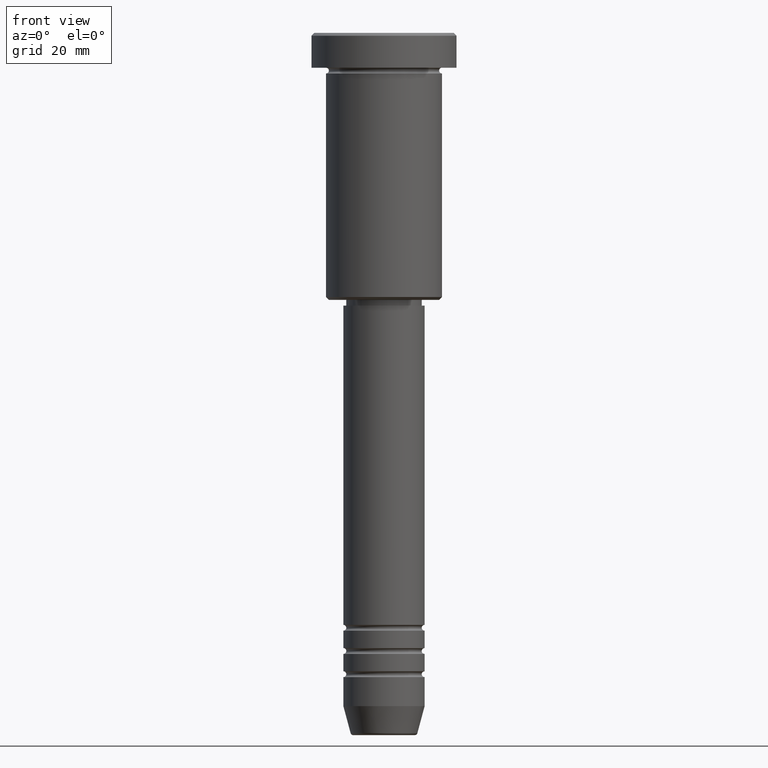
[diagram: clean part render]
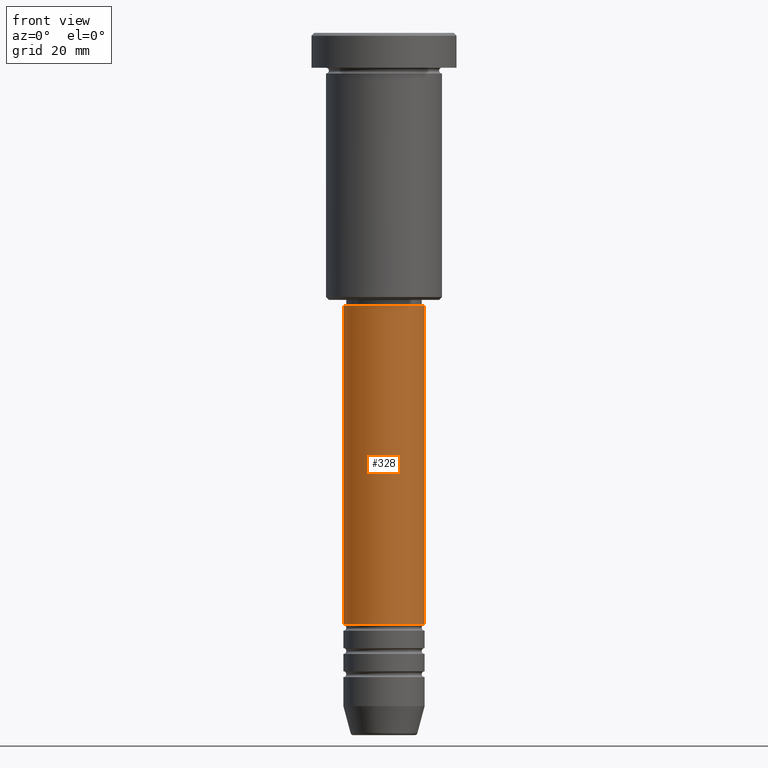
[diagram: same view with one face highlighted and labeled with its STEP entity id]
A machine part, front view. The second image highlights one B-rep face of the part: STEP entity #328.
In plain terms, the highlighted cylindrical surface (partial cylindrical patch) has radius 7 mm, axis along (-0, -0, 1).
Its self-contained STEP definition (entity closure, byte-faithful):
#25 = FACE_OUTER_BOUND ( 'NONE', #111, .T. ) ;
#30 = DIRECTION ( 'NONE',  ( 1.000000000000000000, 0.000000000000000000, 0.000000000000000000 ) ) ;
#47 = CIRCLE ( 'NONE', #864, 7.000000000000000888 ) ;
#62 = CARTESIAN_POINT ( 'NONE',  ( 7.000000000000000888, 0.000000000000000000, -47.00000000000003553 ) ) ;
#111 = EDGE_LOOP ( 'NONE', ( #532, #1090, #921, #352 ) ) ;
#121 = CARTESIAN_POINT ( 'NONE',  ( 0.000000000000000000, 0.000000000000000000, -47.00000000000003553 ) ) ;
#122 = AXIS2_PLACEMENT_3D ( 'NONE', #1144, #405, #774 ) ;
#206 = EDGE_CURVE ( 'NONE', #632, #275, #1108, .T. ) ;
#207 = CARTESIAN_POINT ( 'NONE',  ( -7.000000000000000888, 8.572527594031474176E-16, -47.00000000000003553 ) ) ;
#215 = CIRCLE ( 'NONE', #122, 7.000000000000000888 ) ;
#248 = VECTOR ( 'NONE', #290, 1000.000000000000000 ) ;
#275 = VERTEX_POINT ( 'NONE', #207 ) ;
#290 = DIRECTION ( 'NONE',  ( -0.000000000000000000, -0.000000000000000000, 1.000000000000000000 ) ) ;
#296 = CARTESIAN_POINT ( 'NONE',  ( 7.000000000000000888, 0.000000000000000000, 0.000000000000000000 ) ) ;
#328 = ADVANCED_FACE ( 'NONE', ( #25 ), #842, .T. ) ;
#335 = EDGE_CURVE ( 'NONE', #897, #729, #380, .T. ) ;
#345 = EDGE_CURVE ( 'NONE', #275, #729, #47, .T. ) ;
#352 = ORIENTED_EDGE ( 'NONE', *, *, #345, .F. ) ;
#371 = CARTESIAN_POINT ( 'NONE',  ( 0.000000000000000000, 0.000000000000000000, 0.000000000000000000 ) ) ;
#380 = LINE ( 'NONE', #296, #982 ) ;
#387 = DIRECTION ( 'NONE',  ( -0.000000000000000000, -0.000000000000000000, 1.000000000000000000 ) ) ;
#405 = DIRECTION ( 'NONE',  ( -0.000000000000000000, -0.000000000000000000, 1.000000000000000000 ) ) ;
#426 = CARTESIAN_POINT ( 'NONE',  ( 7.000000000000000888, 0.000000000000000000, -101.9999999999999005 ) ) ;
#469 = DIRECTION ( 'NONE',  ( 1.000000000000000000, 0.000000000000000000, 0.000000000000000000 ) ) ;
#532 = ORIENTED_EDGE ( 'NONE', *, *, #206, .F. ) ;
#632 = VERTEX_POINT ( 'NONE', #928 ) ;
#659 = DIRECTION ( 'NONE',  ( -0.000000000000000000, -0.000000000000000000, 1.000000000000000000 ) ) ;
#729 = VERTEX_POINT ( 'NONE', #62 ) ;
#763 = EDGE_CURVE ( 'NONE', #632, #897, #215, .T. ) ;
#774 = DIRECTION ( 'NONE',  ( 1.000000000000000000, 0.000000000000000000, 0.000000000000000000 ) ) ;
#829 = CARTESIAN_POINT ( 'NONE',  ( -7.000000000000000888, 8.572527594031474176E-16, 0.000000000000000000 ) ) ;
#842 = CYLINDRICAL_SURFACE ( 'NONE', #1139, 7.000000000000000888 ) ;
#864 = AXIS2_PLACEMENT_3D ( 'NONE', #121, #387, #469 ) ;
#897 = VERTEX_POINT ( 'NONE', #426 ) ;
#921 = ORIENTED_EDGE ( 'NONE', *, *, #335, .T. ) ;
#928 = CARTESIAN_POINT ( 'NONE',  ( -7.000000000000000888, 8.572527594031474176E-16, -101.9999999999999005 ) ) ;
#982 = VECTOR ( 'NONE', #659, 1000.000000000000000 ) ;
#1090 = ORIENTED_EDGE ( 'NONE', *, *, #763, .T. ) ;
#1108 = LINE ( 'NONE', #829, #248 ) ;
#1119 = DIRECTION ( 'NONE',  ( -0.000000000000000000, -0.000000000000000000, 1.000000000000000000 ) ) ;
#1139 = AXIS2_PLACEMENT_3D ( 'NONE', #371, #1119, #30 ) ;
#1144 = CARTESIAN_POINT ( 'NONE',  ( 0.000000000000000000, 0.000000000000000000, -101.9999999999999005 ) ) ;